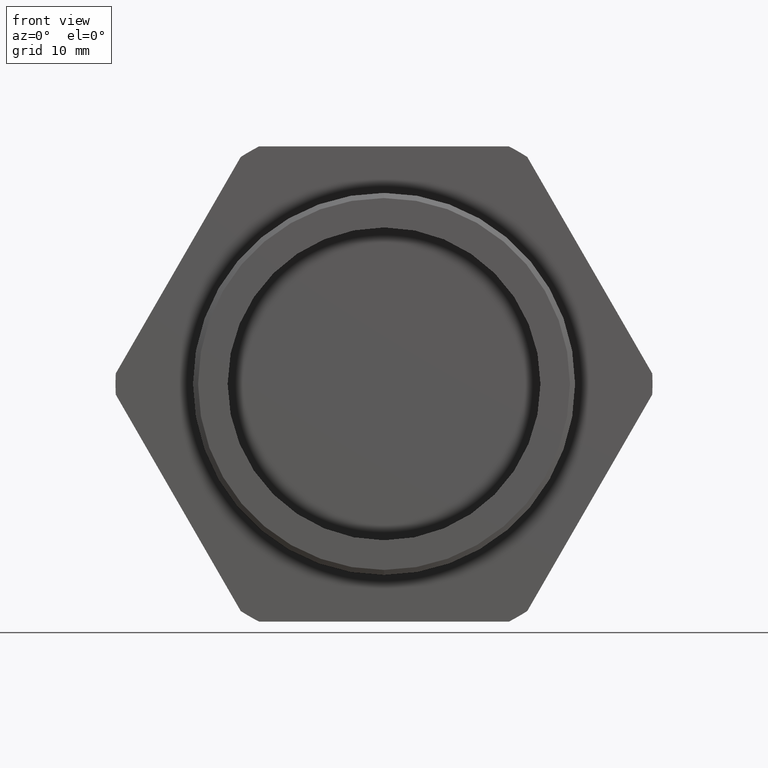
[diagram: clean part render]
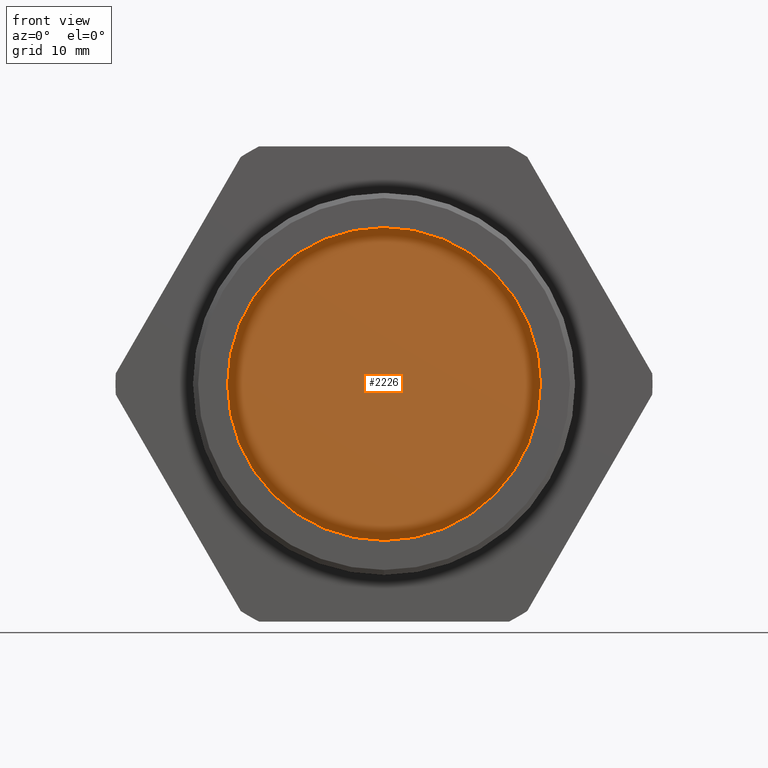
[diagram: same view with one face highlighted and labeled with its STEP entity id]
A machine part, front view. The second image highlights one B-rep face of the part: STEP entity #2226.
In plain terms, the highlighted planar face has unit normal (0, 1, 0).
Its self-contained STEP definition (entity closure, byte-faithful):
#169 = EDGE_CURVE ( 'NONE', #170, #171, #889, .T. ) ;
#170 = VERTEX_POINT ( 'NONE', #880 ) ;
#171 = VERTEX_POINT ( 'NONE', #879 ) ;
#879 = CARTESIAN_POINT ( 'NONE',  ( 0.0000000000000000000, 0.3100000000000000500, -0.5299999999999999200 ) ) ;
#880 = CARTESIAN_POINT ( 'NONE',  ( 6.490628035480971200E-017, 0.3100000000000000500, 0.5299999999999999200 ) ) ;
#881 = DIRECTION ( 'NONE',  ( 0.0000000000000000000, 0.0000000000000000000, -1.000000000000000000 ) ) ;
#882 = DIRECTION ( 'NONE',  ( 0.0000000000000000000, -1.000000000000000000, 0.0000000000000000000 ) ) ;
#883 = CARTESIAN_POINT ( 'NONE',  ( 0.0000000000000000000, 0.3100000000000000500, 0.0000000000000000000 ) ) ;
#884 = AXIS2_PLACEMENT_3D ( 'NONE', #883, #882, #881 ) ;
#889 = CIRCLE ( 'NONE', #884, 0.5299999999999999200 ) ;
#1948 = DIRECTION ( 'NONE',  ( 0.0000000000000000000, 0.0000000000000000000, -1.000000000000000000 ) ) ;
#1949 = DIRECTION ( 'NONE',  ( 0.0000000000000000000, -1.000000000000000000, 0.0000000000000000000 ) ) ;
#1950 = CARTESIAN_POINT ( 'NONE',  ( 0.0000000000000000000, 0.3100000000000000500, 0.0000000000000000000 ) ) ;
#1951 = AXIS2_PLACEMENT_3D ( 'NONE', #1950, #1949, #1948 ) ;
#1952 = CIRCLE ( 'NONE', #1951, 0.5299999999999999200 ) ;
#2002 = DIRECTION ( 'NONE',  ( 0.0000000000000000000, 0.0000000000000000000, 1.000000000000000000 ) ) ;
#2003 = DIRECTION ( 'NONE',  ( 0.0000000000000000000, 1.000000000000000000, 0.0000000000000000000 ) ) ;
#2004 = CARTESIAN_POINT ( 'NONE',  ( -0.5299999999999999200, 0.3100000000000000500, 0.0000000000000000000 ) ) ;
#2005 = AXIS2_PLACEMENT_3D ( 'NONE', #2004, #2003, #2002 ) ;
#2006 = PLANE ( 'NONE',  #2005 ) ;
#2011 = FACE_OUTER_BOUND ( 'NONE', #2228, .T. ) ;
#2172 = EDGE_CURVE ( 'NONE', #171, #170, #1952, .T. ) ;
#2173 = ORIENTED_EDGE ( 'NONE', *, *, #169, .T. ) ;
#2226 = ADVANCED_FACE ( 'NONE', ( #2011 ), #2006, .F. ) ;
#2227 = ORIENTED_EDGE ( 'NONE', *, *, #2172, .T. ) ;
#2228 = EDGE_LOOP ( 'NONE', ( #2227, #2173 ) ) ;